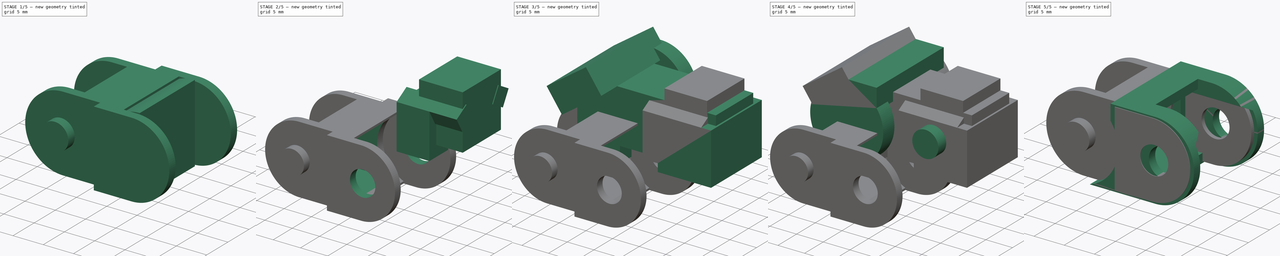
[diagram: build sequence overview — one tinted view per stage of 5, left to right]
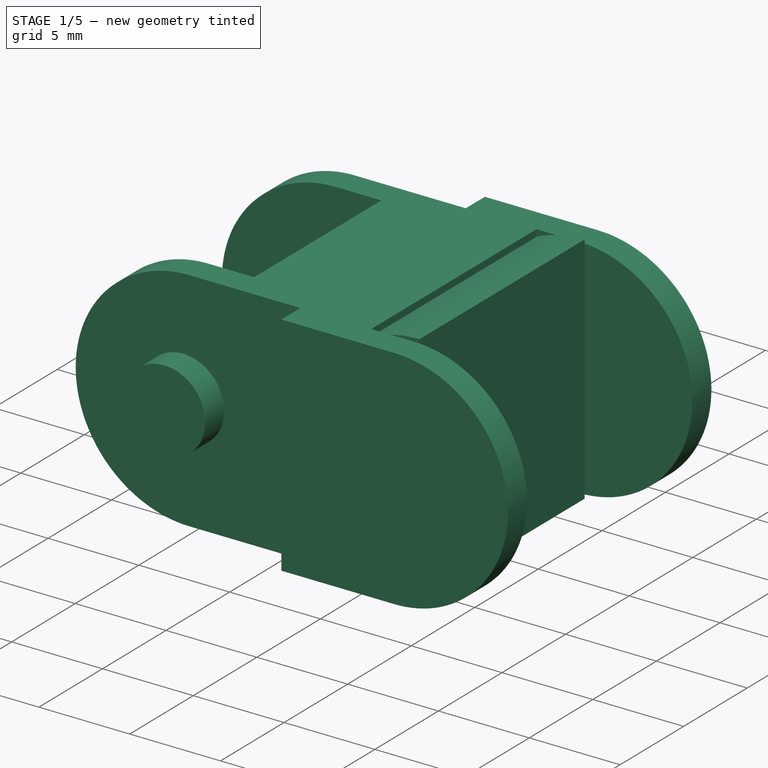
[diagram: stage 1 of 5 — iso view after this stage's code; geometry added in this stage tinted green]
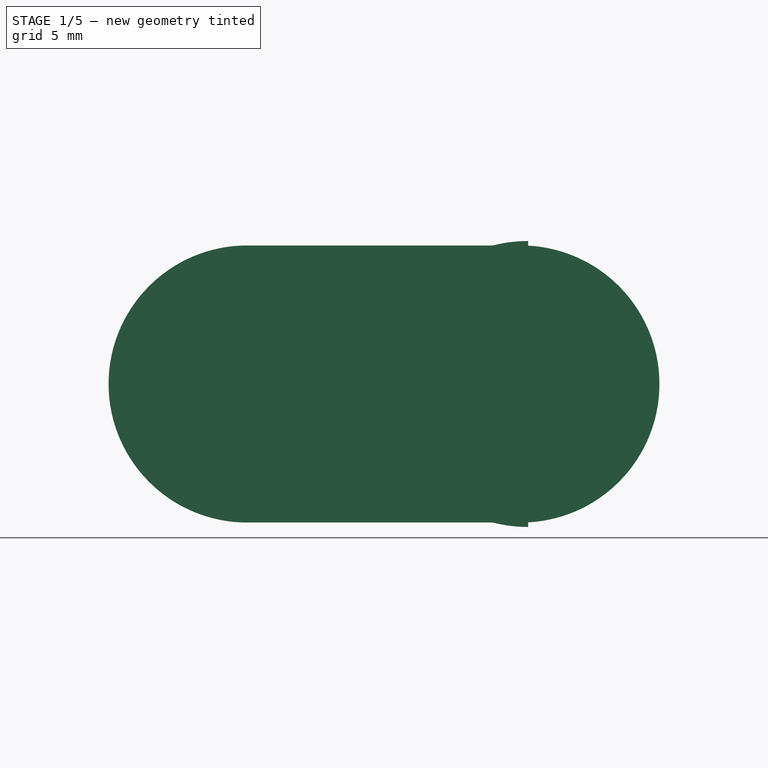
[diagram: stage 1 of 5 — front view after this stage's code; geometry added in this stage tinted green]
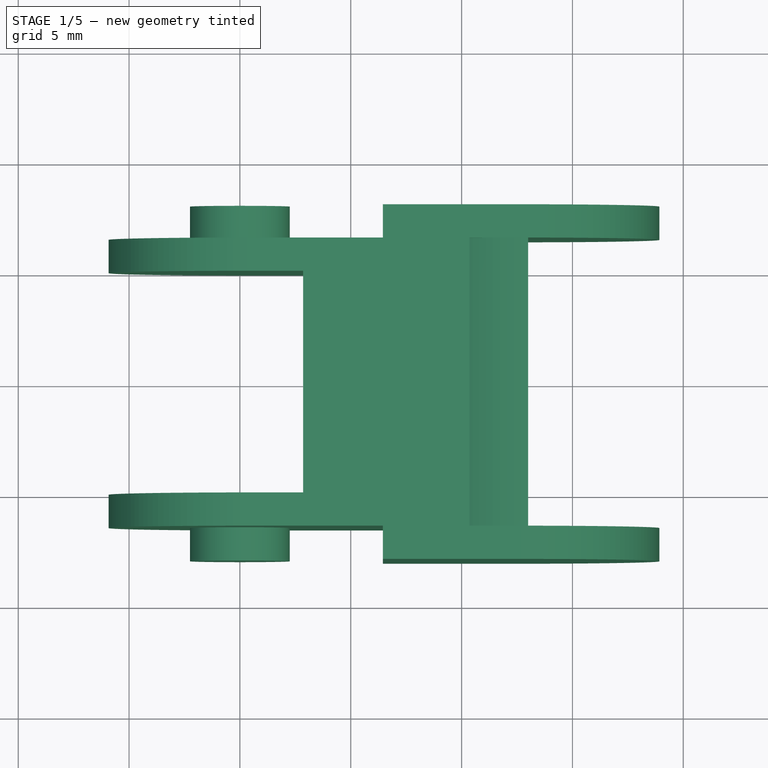
[diagram: stage 1 of 5 — top view after this stage's code; geometry added in this stage tinted green]
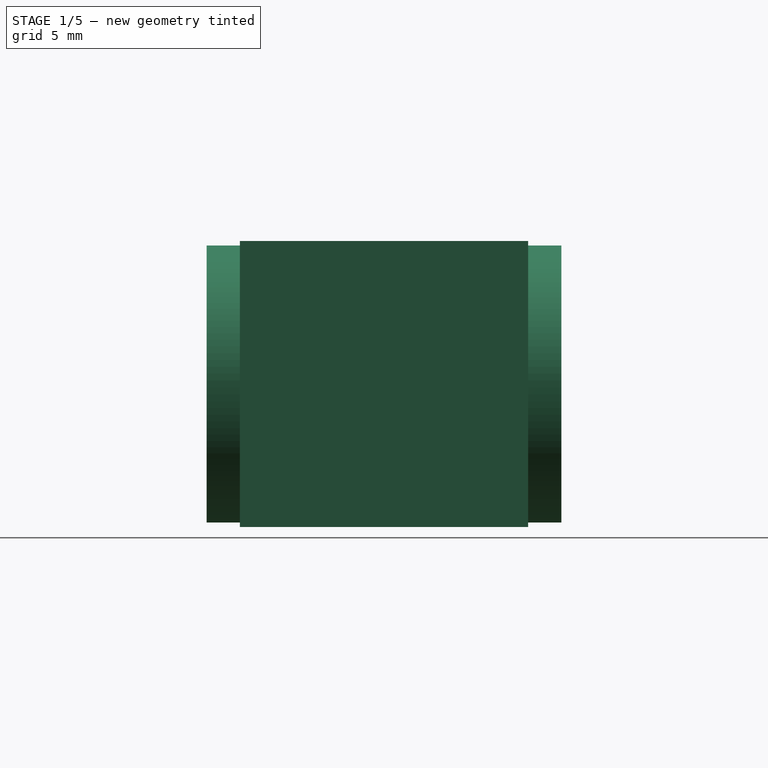
[diagram: stage 1 of 5 — right view after this stage's code; geometry added in this stage tinted green]
FCSTD DOCUMENT  (FreeCAD 0.16R4945 (Git))
Label: cable-chain-link-25_5x16x12_5mm_v2
License: CC-BY 3.0
LicenseURL: http://creativecommons.org/licenses/by/3.0/
objects: Part::Box×11, Sketcher::SketchObject×9, Part::Cylinder×5, PartDesign::Pocket×5, Part::Cut×4, Part::MultiFuse×4, PartDesign::Pad×4, Part::Feature×2, Part::Fillet×1
note: 54 computed .brp shape members not serialized (recipe doc carries the construction recipe); baked Part::Feature solids carry a one-line shape summary decoded from their .brp

FEATURE [Sketcher::SketchObject] Sketch  label="main-body-sketch"
  Placement = pos=(0,0,0) rot=(1,0,0;1.5708rad)
  sketch-geometry (8):
    g0: Circle [constr] CenterX=13 CenterY=0 CenterZ=0 NormalX=0 NormalY=0 NormalZ=1 Radius=2.325
    g1: Circle [constr] CenterX=0 CenterY=0 CenterZ=0 NormalX=0 NormalY=0 NormalZ=1 Radius=2.25
    g2: LineSegment [constr] StartX=0.325 StartY=6.25 StartZ=0 EndX=0.325 EndY=-6.25 EndZ=0
    g3: ArcOfCircle CenterX=0.325 CenterY=0 CenterZ=0 NormalX=0 NormalY=0 NormalZ=1 Radius=6.25 StartAngle=1.5708 EndAngle=4.71239
    g4: LineSegment [constr] StartX=12.675 StartY=6.25 StartZ=0 EndX=12.675 EndY=-6.25 EndZ=0
    g5: LineSegment StartX=0.325 StartY=6.25 StartZ=0 EndX=12.675 EndY=6.25 EndZ=0
    g6: LineSegment StartX=0.325 StartY=-6.25 StartZ=0 EndX=12.675 EndY=-6.25 EndZ=0
    g7: ArcOfCircle CenterX=12.675 CenterY=0 CenterZ=0 NormalX=0 NormalY=0 NormalZ=1 Radius=6.25 StartAngle=4.71239 EndAngle=7.85398
  constraints (24):
    c: PointOnObject(g0,g-1)
    c: Radius(g0) = 2.325
    c: Coincident(g1,g-1)
    c: Radius(g1) = 2.25
    c: DistanceX(g-1,g0) = 13
    c: Vertical(g2)
    c: Coincident(g3,g2)
    c: Coincident(g3,g2)
    c: Radius(g3) = 6.25
    c: PointOnObject(g3,g-1)
    c: DistanceX(g-1,g3) = 0.325
    c: PointOnObject(g3,g2)
    c: Vertical(g4)
    c: Horizontal(g5)
    c: Coincident(g5,g2)
    c: Coincident(g5,g4)
    c: Horizontal(g6)
    c: Coincident(g6,g2)
    c: Coincident(g6,g4)
    c: PointOnObject(g7,g-1)
    c: DistanceX(g7,g0) = 0.325
    c: Coincident(g7,g4)
    c: Coincident(g7,g4)
    c: PointOnObject(g7,g4)
FEATURE [PartDesign::Pad] Pad  label="main-body"
  Length = 16
  Length2 = 100
  Midplane = true
  Placement = pos=(0,0,0) rot=(1,0,0;1.5708rad)
  Sketch = -> Sketch
  Type = 0
FEATURE [Sketcher::SketchObject] Sketch001  label="top-cutout-1-sketch"
  ExternalGeometry = -> [Pad]
  Placement = pos=(0,0,6.25) rot=(0,0,1;3.14159rad)
  Support = -> Pad [Face4]
  sketch-geometry (11):
    g0: LineSegment [constr] StartX=-6.45 StartY=8 StartZ=0 EndX=9.55 EndY=8 EndZ=0
    g1: LineSegment StartX=9.55 StartY=8 StartZ=0 EndX=9.55 EndY=6.5 EndZ=0
    g2: LineSegment StartX=9.55 StartY=6.5 StartZ=0 EndX=-6.45 EndY=6.5 EndZ=0
    g3: LineSegment StartX=-6.45 StartY=6.5 StartZ=0 EndX=-6.45 EndY=8 EndZ=0
    g4: LineSegment StartX=-6.45 StartY=-6.5 StartZ=0 EndX=9.55 EndY=-6.5 EndZ=0
    g5: LineSegment StartX=9.55 StartY=-6.5 StartZ=0 EndX=9.55 EndY=-9 EndZ=0
    g6: LineSegment StartX=9.55 StartY=-9 StartZ=0 EndX=-6.45 EndY=-9 EndZ=0
    g7: LineSegment StartX=-6.45 StartY=-9 StartZ=0 EndX=-6.45 EndY=-6.5 EndZ=0
    g8: LineSegment StartX=-6.45 StartY=9 StartZ=0 EndX=9.55 EndY=9 EndZ=0
    g9: LineSegment StartX=9.55 StartY=9 StartZ=0 EndX=9.55 EndY=8 EndZ=0
    g10: LineSegment StartX=-6.45 StartY=8 StartZ=0 EndX=-6.45 EndY=9 EndZ=0
  constraints (31):
    c: Coincident(g0,g1)
    c: Coincident(g1,g2)
    c: Coincident(g2,g3)
    c: Coincident(g3,g0)
    c: Horizontal(g0)
    c: Horizontal(g2)
    c: Vertical(g1)
    c: Vertical(g3)
    c: PointOnObject(g0,g-3)
    c: DistanceY(g3) = 1.5
    c: DistanceX(g-1,g2) = -6.45
    c: DistanceX(g2) = -16
    c: Coincident(g4,g5)
    c: Coincident(g5,g6)
    c: Coincident(g6,g7)
    c: Coincident(g7,g4)
    c: Horizontal(g4)
    c: Horizontal(g6)
    c: Vertical(g5)
    c: Vertical(g7)
    c: Coincident(g8,g9)
    c: Coincident(g10,g8)
    c: Horizontal(g8)
    c: Vertical(g9)
    c: Vertical(g10)
    c: Coincident(g10,g0)
    c: Coincident(g9,g0)
    c: DistanceY(g9) = -1
    c: Symmetric(g4,g2,g-1)
    c: Symmetric(g8,g6,g-1)
    c: Symmetric(g1,g4,g-1)
FEATURE [PartDesign::Pocket] Pocket  label="top-cutout-1"
  Length = 5
  Placement = pos=(0,0,0) rot=(1,0,0;1.5708rad)
  Sketch = -> Sketch001
  Type = 1
FEATURE [Sketcher::SketchObject] Sketch002  label="top-cutout-2-sketch"
  ExternalGeometry = -> [Pocket]
  Placement = pos=(0,0,6.25) rot=(0,0,1;3.14159rad)
  Support = -> Pocket [Face5]
  sketch-geometry (4):
    g0: LineSegment StartX=7.15 StartY=5 StartZ=0 EndX=-2.85 EndY=5 EndZ=0
    g1: LineSegment StartX=-2.85 StartY=5 StartZ=0 EndX=-2.85 EndY=-5 EndZ=0
    g2: LineSegment StartX=-2.85 StartY=-5 StartZ=0 EndX=7.15 EndY=-5 EndZ=0
    g3: LineSegment StartX=7.15 StartY=-5 StartZ=0 EndX=7.15 EndY=5 EndZ=0
  constraints (12):
    c: Coincident(g0,g1)
    c: Coincident(g1,g2)
    c: Coincident(g2,g3)
    c: Coincident(g3,g0)
    c: Horizontal(g0)
    c: Horizontal(g2)
    c: Vertical(g1)
    c: Vertical(g3)
    c: Symmetric(g0,g2,g-1)
    c: DistanceY(g-3,g0) = -1.5
    c: DistanceX(g0,g-3) = -3.6
    c: DistanceX(g2) = 10
FEATURE [PartDesign::Pocket] Pocket001  label="top-cutout-2"
  Length = 5
  Placement = pos=(0,0,0) rot=(1,0,0;1.5708rad)
  Sketch = -> Sketch002
  Type = 1
FEATURE [Sketcher::SketchObject] Sketch003  label="top-cutout-3-sketch"
  ExternalGeometry = -> [Pocket001]
  Placement = pos=(0,0,6.25) rot=(0,0,1;3.14159rad)
  Support = -> Pocket001 [Face4]
  sketch-geometry (4):
    g0: LineSegment StartX=-23.35 StartY=6.5 StartZ=0 EndX=-10.35 EndY=6.5 EndZ=0
    g1: LineSegment StartX=-10.35 StartY=6.5 StartZ=0 EndX=-10.35 EndY=-6.5 EndZ=0
    g2: LineSegment StartX=-10.35 StartY=-6.5 StartZ=0 EndX=-23.35 EndY=-6.5 EndZ=0
    g3: LineSegment StartX=-23.35 StartY=-6.5 StartZ=0 EndX=-23.35 EndY=6.5 EndZ=0
  constraints (12):
    c: Coincident(g0,g1)
    c: Coincident(g1,g2)
    c: Coincident(g2,g3)
    c: Coincident(g3,g0)
    c: Horizontal(g0)
    c: Horizontal(g2)
    c: Vertical(g1)
    c: Vertical(g3)
    c: Symmetric(g0,g2,g-1)
    c: DistanceX(g0,g-3) = 3.9
    c: DistanceY(g0,g-3) = 1.5
    c: DistanceX(g2) = -13
FEATURE [PartDesign::Pocket] Pocket002  label="top-cutout-3"
  Length = 5
  Placement = pos=(0,0,0) rot=(1,0,0;1.5708rad)
  Sketch = -> Sketch003
  Type = 1
FEATURE [Sketcher::SketchObject] Sketch004  label="male-shaft-1-sketch"
  Placement = pos=(0,-6.5,0) rot=(1,0,0;1.5708rad)
  Support = -> Pocket002 [Face14]
  sketch-geometry (1):
    g0: Circle CenterX=0 CenterY=0 CenterZ=0 NormalX=0 NormalY=0 NormalZ=1 Radius=2.25
  constraints (2):
    c: Coincident(g0,g-1)
    c: Radius(g0) = 2.25
FEATURE [PartDesign::Pad] Pad001  label="male-shaft-1"
  Length = 1.5
  Length2 = 100
  Placement = pos=(0,0,0) rot=(1,0,0;1.5708rad)
  Sketch = -> Sketch004
  Type = 0
FEATURE [Sketcher::SketchObject] Sketch005  label="male-shaft-2-sketch"
  Placement = pos=(0,6.5,0) rot=(-1,0,0;1.5708rad)
  Support = -> Pad001 [Face5]
  sketch-geometry (1):
    g0: Circle CenterX=0 CenterY=0 CenterZ=0 NormalX=0 NormalY=0 NormalZ=1 Radius=2.25
  constraints (2):
    c: Coincident(g0,g-1)
    c: Radius(g0) = 2.25
FEATURE [PartDesign::Pad] Pad002  label="male-shaft-2"
  Length = 1.5
  Length2 = 100
  Placement = pos=(0,0,0) rot=(1,0,0;1.5708rad)
  Sketch = -> Sketch005
  Type = 0
FEATURE [Sketcher::SketchObject] Sketch008  label="inner-room-male-sketch"
  Placement = pos=(0,0,0) rot=(1,0,0;1.5708rad)
  sketch-geometry (2):
    g0: ArcOfCircle CenterX=13 CenterY=0 CenterZ=0 NormalX=0 NormalY=0 NormalZ=1 Radius=6.45 StartAngle=1.5708 EndAngle=4.71239
    g1: LineSegment StartX=13 StartY=6.45 StartZ=0 EndX=13 EndY=-6.45 EndZ=0
  constraints (8):
    c: Radius(g0) = 6.45
    c: PointOnObject(g0,g-1)
    c: Symmetric(g0,g0,g-1)
    c: DistanceX(g-1,g0) = 13
    c: Vertical(g1)
    c: Coincident(g1,g0)
    c: Coincident(g1,g0)
    c: PointOnObject(g0,g1)
FEATURE [PartDesign::Pad] Pad003  label="inner-room-male"
  Length = 13
  Length2 = 100
  Midplane = true
  Placement = pos=(0,0,0) rot=(1,0,0;1.5708rad)
  Sketch = -> Sketch008
  Type = 0
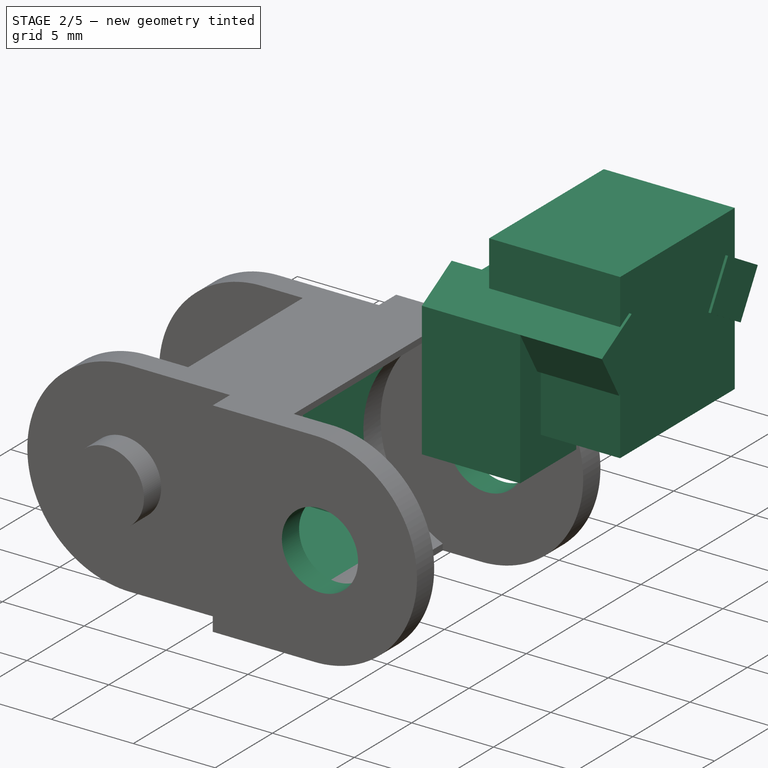
[diagram: stage 2 of 5 — iso view after this stage's code; geometry added in this stage tinted green]
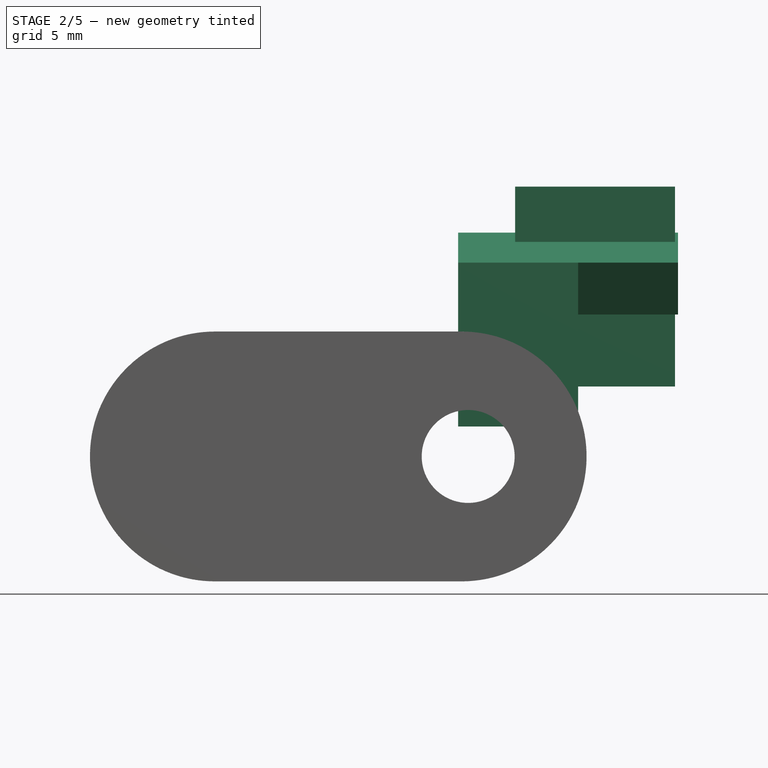
[diagram: stage 2 of 5 — front view after this stage's code; geometry added in this stage tinted green]
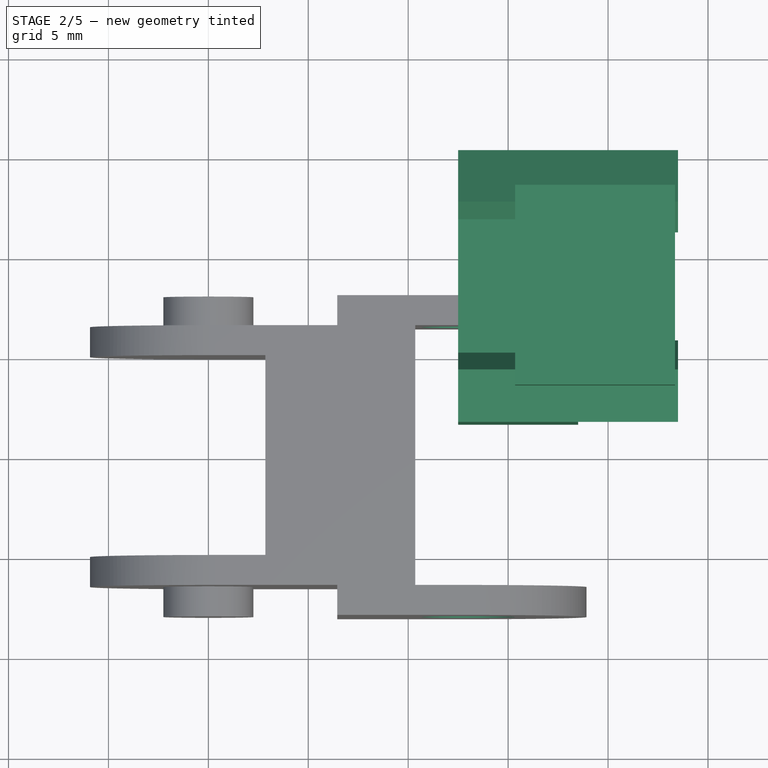
[diagram: stage 2 of 5 — top view after this stage's code; geometry added in this stage tinted green]
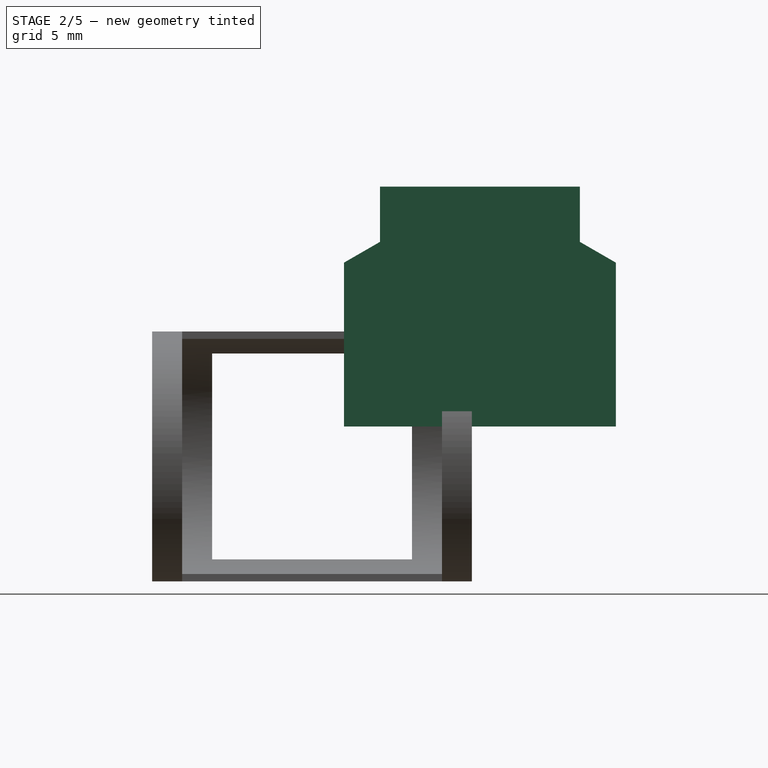
[diagram: stage 2 of 5 — right view after this stage's code; geometry added in this stage tinted green]
FEATURE [Part::Box] Box007
  Height = 8.2
  Length = 6
  Placement = pos=(12.5,1.6,1.5) rot=(0,0,1;0rad)
  Width = 13.6
FEATURE [Part::Box] Box008
  Height = 10
  Length = 8
  Placement = pos=(15.35,3.4,3.5) rot=(0,0,1;0rad)
  Width = 10
FEATURE [Part::Box] Box009
  Height = 3
  Length = 11
  Placement = pos=(12.5,3.1,7.1) rot=(1,0,0;0.523599rad)
  Width = 3
FEATURE [Part::Box] Box010
  Height = 3
  Length = 11
  Placement = pos=(12.5,13.7,7.1) rot=(1,0,0;1.0472rad)
  Width = 3
FEATURE [Sketcher::SketchObject] Sketch006  label="female-shaft-sketch"
  Placement = pos=(0,8,0) rot=(-1,0,0;1.5708rad)
  Support = -> Pad002 [Face6]
  sketch-geometry (1):
    g0: Circle CenterX=13 CenterY=0 CenterZ=0 NormalX=0 NormalY=0 NormalZ=1 Radius=2.325
  constraints (3):
    c: PointOnObject(g0,g-1)
    c: DistanceX(g-1,g0) = 13
    c: Radius(g0) = 2.325
FEATURE [PartDesign::Pocket] Pocket003  label="female-shaft"
  Length = 5
  Placement = pos=(0,0,0) rot=(1,0,0;1.5708rad)
  Sketch = -> Sketch006
  Type = 1
FEATURE [Sketcher::SketchObject] Sketch007  label="inner-cutout-1-sketch"
  ExternalGeometry = -> [Pocket003]
  Placement = pos=(10.35,0,0) rot=(0.707107,0,0.707107;3.14159rad)
  Support = -> Pocket003 [Face9]
  sketch-geometry (4):
    g0: LineSegment StartX=-5.15 StartY=5 StartZ=0 EndX=5.15 EndY=5 EndZ=0
    g1: LineSegment StartX=5.15 StartY=5 StartZ=0 EndX=5.15 EndY=-5 EndZ=0
    g2: LineSegment StartX=5.15 StartY=-5 StartZ=0 EndX=-5.15 EndY=-5 EndZ=0
    g3: LineSegment StartX=-5.15 StartY=-5 StartZ=0 EndX=-5.15 EndY=5 EndZ=0
  constraints (11):
    c: Coincident(g0,g1)
    c: Coincident(g1,g2)
    c: Coincident(g2,g3)
    c: Coincident(g3,g0)
    c: Horizontal(g0)
    c: Horizontal(g2)
    c: Vertical(g1)
    c: Vertical(g3)
    c: Symmetric(g0,g1,g-1)
    c: DistanceX(g0,g-3) = 1.1
    c: DistanceY(g0,g-3) = 1.5
FEATURE [PartDesign::Pocket] Pocket004  label="inner-cutout-1"
  Length = 5
  Placement = pos=(0,0,0) rot=(1,0,0;1.5708rad)
  Sketch = -> Sketch007
  Type = 1
FEATURE [Part::Cut] Cut003  label="cable-chain-link"
  Base = -> Pocket004
  Tool = -> Pad003
FEATURE [Part::Feature] Cut003001  label="cable-chain-link-1"
  shape: bbox 24.85 x 16 x 12.5 mm, 29 faces (baked)
FEATURE [Part::Feature] Cut003002  label="cable-chain-link-2-ex"
  Placement = pos=(13,0,0) rot=(0,0,1;0rad)
  shape: bbox 24.85 x 16 x 12.5 mm, 29 faces (baked)
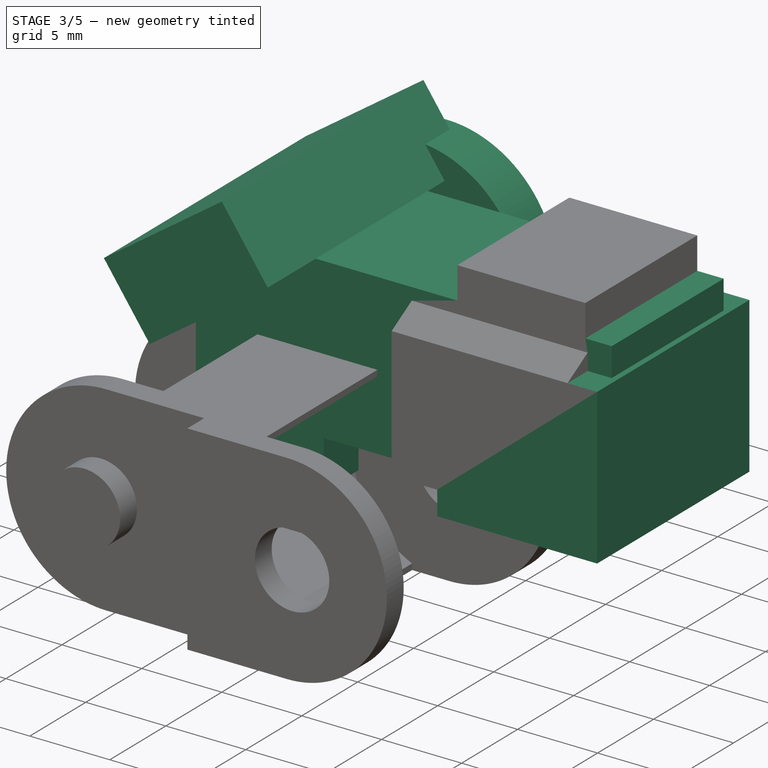
[diagram: stage 3 of 5 — iso view after this stage's code; geometry added in this stage tinted green]
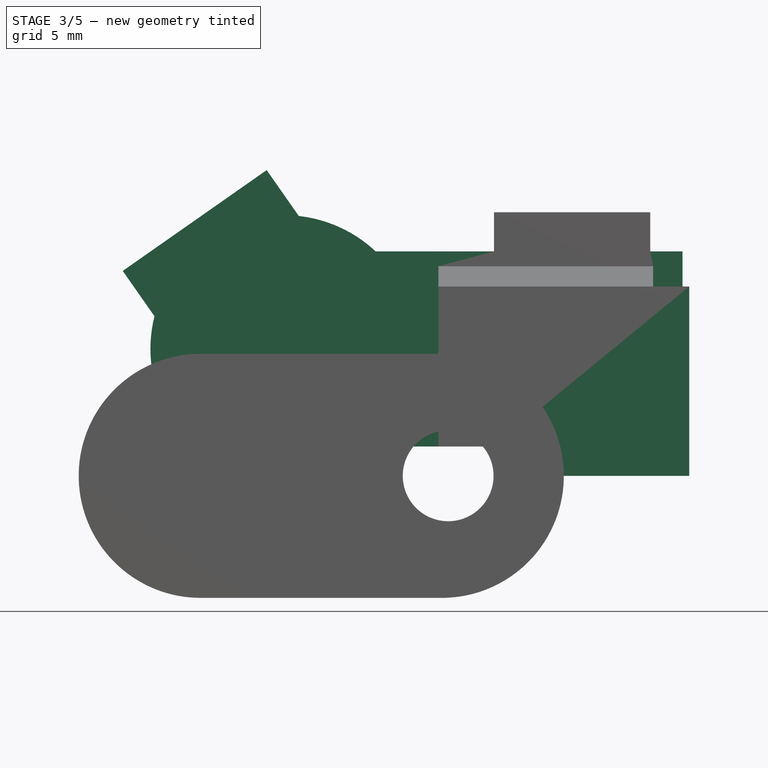
[diagram: stage 3 of 5 — front view after this stage's code; geometry added in this stage tinted green]
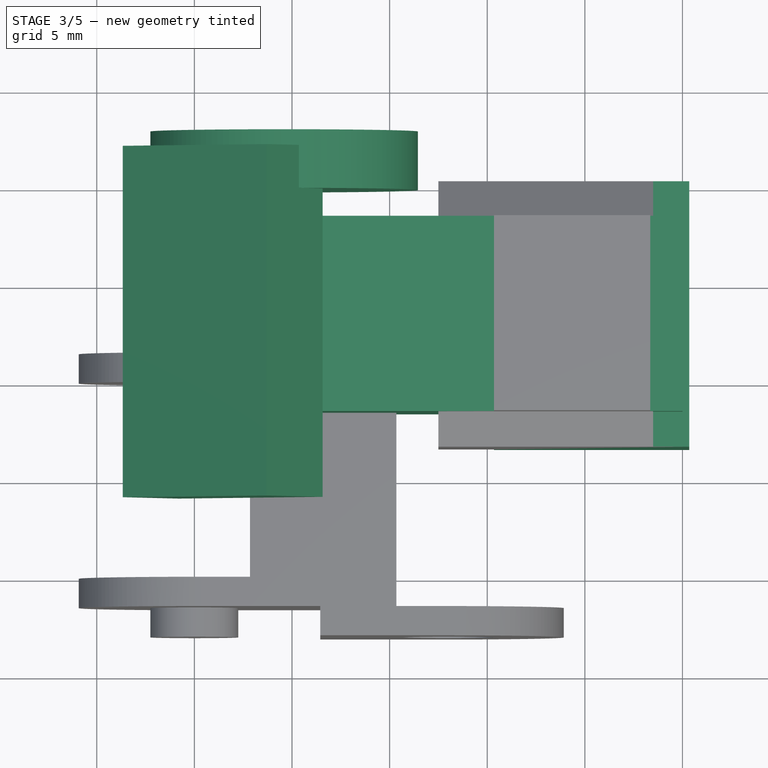
[diagram: stage 3 of 5 — top view after this stage's code; geometry added in this stage tinted green]
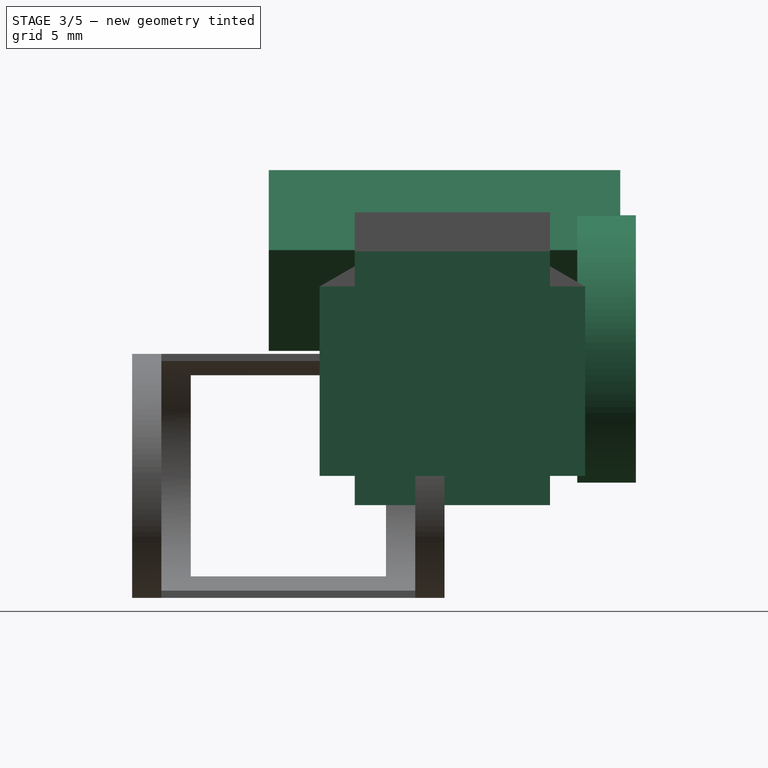
[diagram: stage 3 of 5 — right view after this stage's code; geometry added in this stage tinted green]
FEATURE [Part::Box] Box002
  Height = 5
  Length = 9
  Placement = pos=(-0.8,-1,6.4) rot=(0,-1,0;0.610866rad)
  Width = 18
FEATURE [Part::Cylinder] Cylinder004
  Angle = 360
  Height = 3
  Placement = pos=(4.6,17.8,6.5) rot=(1,0,0;1.5708rad)
  Radius = 6.85
FEATURE [Part::Box] Box004
  Height = 10
  Length = 26
  Placement = pos=(-1,3.4,1.5) rot=(0,0,1;0rad)
  Width = 10
FEATURE [Part::Box] Box005
  Height = 13
  Length = 8
  Placement = pos=(-1,3.4,-1.5) rot=(0,0,1;0rad)
  Width = 10
FEATURE [Part::Box] Box006
  Height = 9.7
  Length = 10
  Placement = pos=(15.35,1.6,0) rot=(0,0,1;0rad)
  Width = 13.6
FEATURE [Part::MultiFuse] Fusion003
  Shapes = -> [Box009,Box010,Box004,Box005,Box006,Box007,Box008]
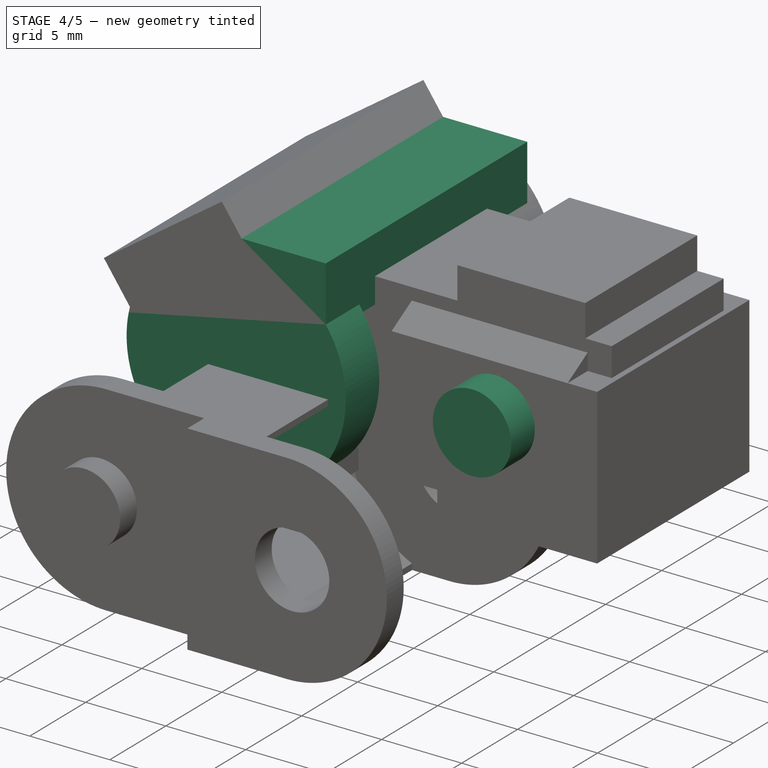
[diagram: stage 4 of 5 — iso view after this stage's code; geometry added in this stage tinted green]
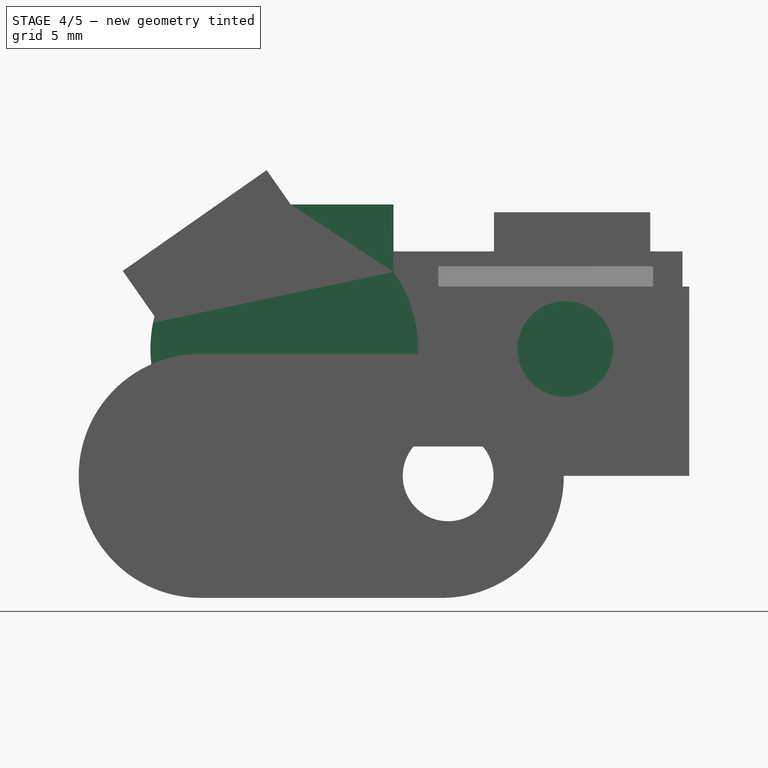
[diagram: stage 4 of 5 — front view after this stage's code; geometry added in this stage tinted green]
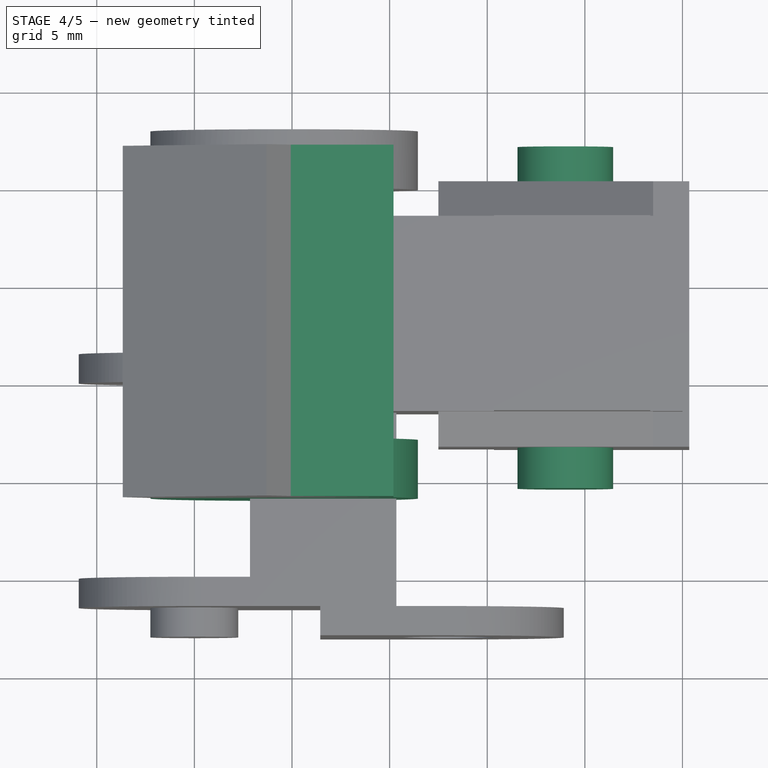
[diagram: stage 4 of 5 — top view after this stage's code; geometry added in this stage tinted green]
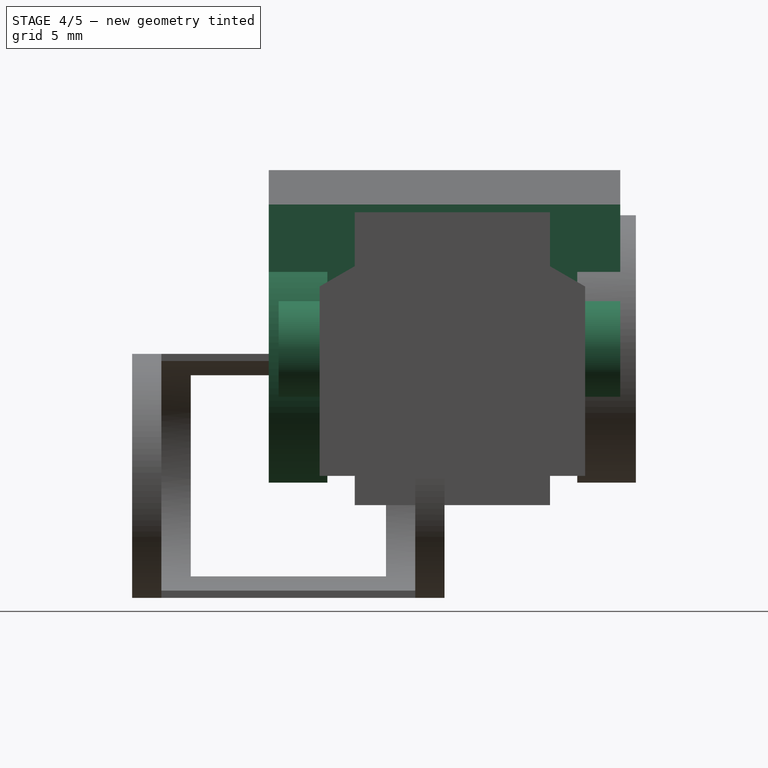
[diagram: stage 4 of 5 — right view after this stage's code; geometry added in this stage tinted green]
FEATURE [Part::Box] Box001
  Height = 4
  Length = 7
  Placement = pos=(3.2,-1,9.9) rot=(0,0,1;0rad)
  Width = 18
FEATURE [Part::Cylinder] Cylinder
  Angle = 360
  Height = 17.5
  Placement = pos=(19,17,6.5) rot=(1,0,0;1.5708rad)
  Radius = 2.45
FEATURE [Part::Cylinder] Cylinder002
  Angle = 360
  Height = 3
  Placement = pos=(4.6,2,6.5) rot=(1,0,0;1.5708rad)
  Radius = 6.85
FEATURE [Part::Cylinder] Cylinder003
  Angle = 360
  Height = 17.5
  Placement = pos=(5,17,5.5) rot=(1,0,0;1.5708rad)
  Radius = 5.5
FEATURE [Part::Box] Box003
  Height = 4
  Length = 5
  Placement = pos=(0,-0.5,0) rot=(0,0,1;0rad)
  Width = 17.5
FEATURE [Part::Cut] Cut001
  Base = -> Box003
  Tool = -> Cylinder003
FEATURE [Part::MultiFuse] Fusion
  Shapes = -> [Box002,Box001,Cylinder002,Cylinder,Cylinder004]
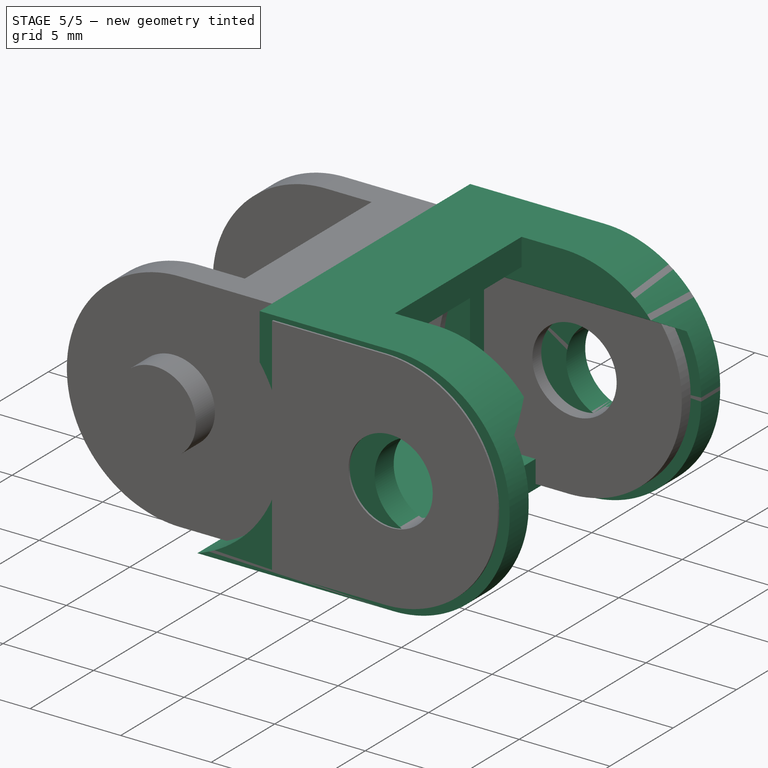
[diagram: stage 5 of 5 — iso view after this stage's code; geometry added in this stage tinted green]
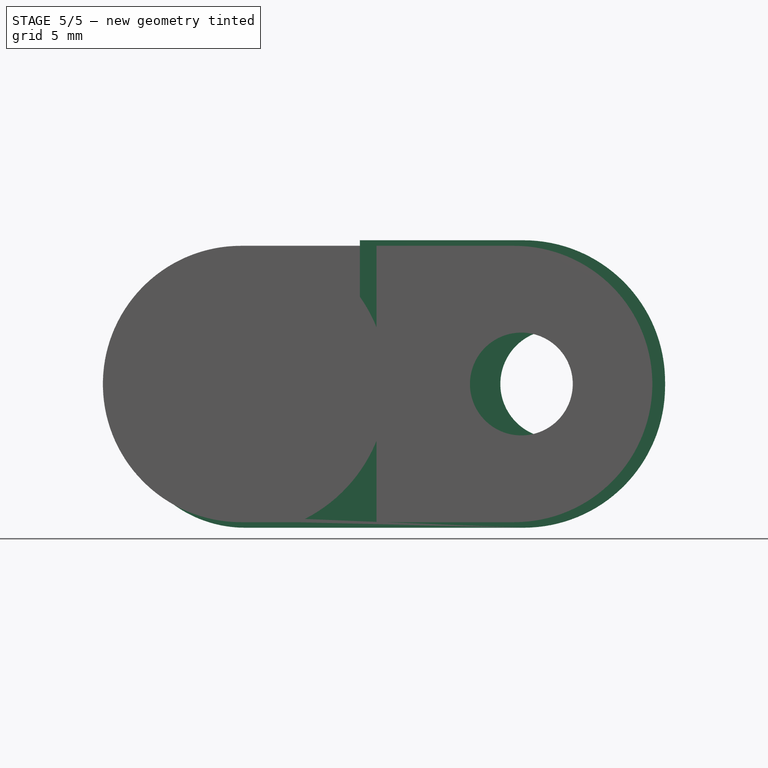
[diagram: stage 5 of 5 — front view after this stage's code; geometry added in this stage tinted green]
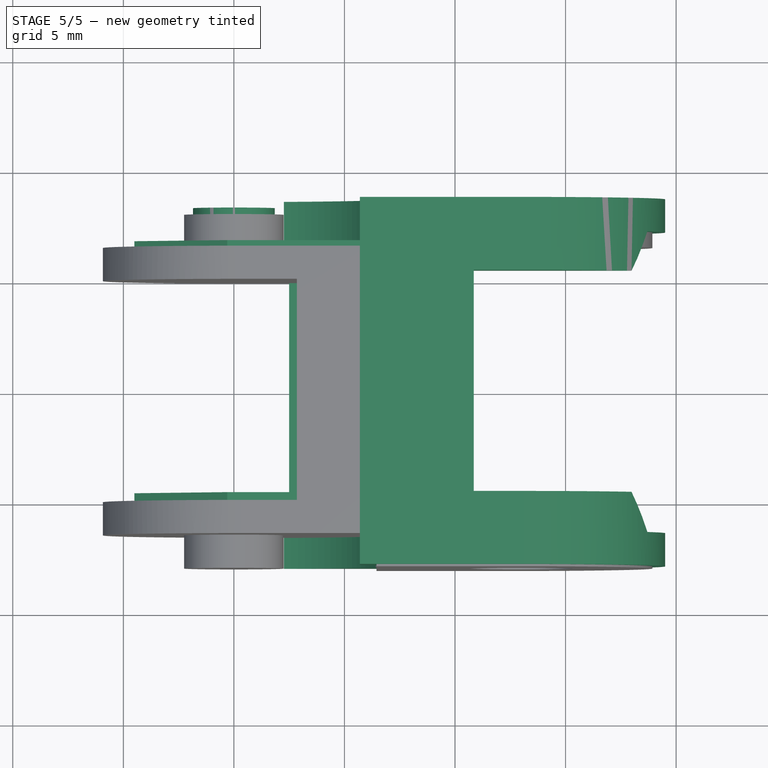
[diagram: stage 5 of 5 — top view after this stage's code; geometry added in this stage tinted green]
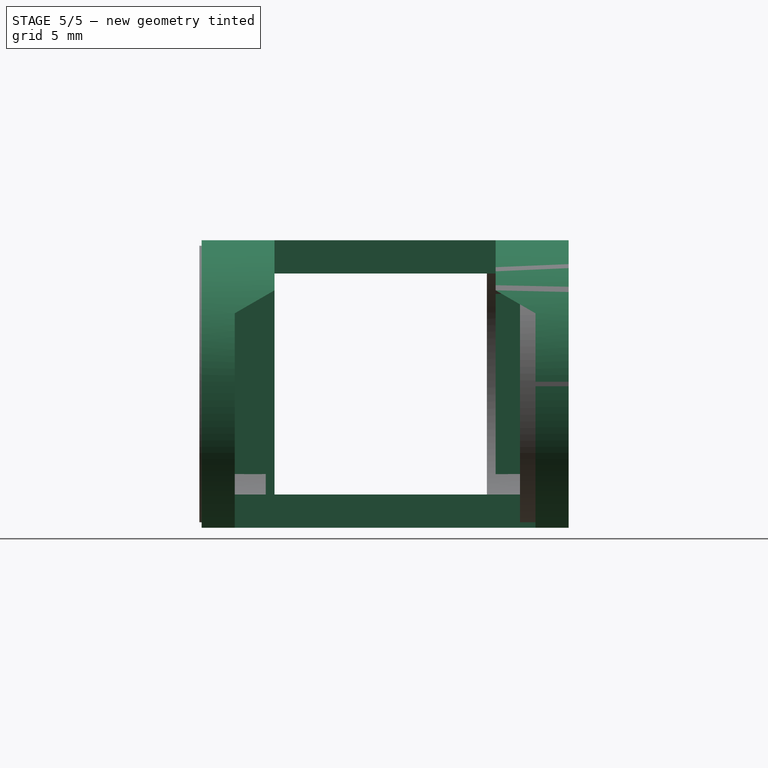
[diagram: stage 5 of 5 — right view after this stage's code; geometry added in this stage tinted green]
FEATURE [Part::Box] Box
  Height = 13
  Length = 24
  Placement = pos=(0,0.1,0) rot=(0,0,1;0rad)
  Width = 16.6
FEATURE [Part::Fillet] Fillet
  Base = -> Box
  Edges = 2 edges r=6.4: [Edge6,Edge8]
FEATURE [Part::Cylinder] Cylinder001
  Angle = 360
  Height = 15.8
  Placement = pos=(4.5,16.3,6.5) rot=(1,0,0;1.5708rad)
  Radius = 1.85
FEATURE [Part::MultiFuse] Fusion001
  Shapes = -> [Fusion,Cut001]
FEATURE [Part::Cut] Cut
  Base = -> Fillet
  Tool = -> Fusion001
FEATURE [Part::MultiFuse] Fusion002
  Shapes = -> [Cut,Cylinder001]
FEATURE [Part::Cut] Cut002  label="pieza"
  Base = -> Fusion002
  Placement = pos=(-4.5,-8,-6.5) rot=(0,0,1;0rad)
  Tool = -> Fusion003
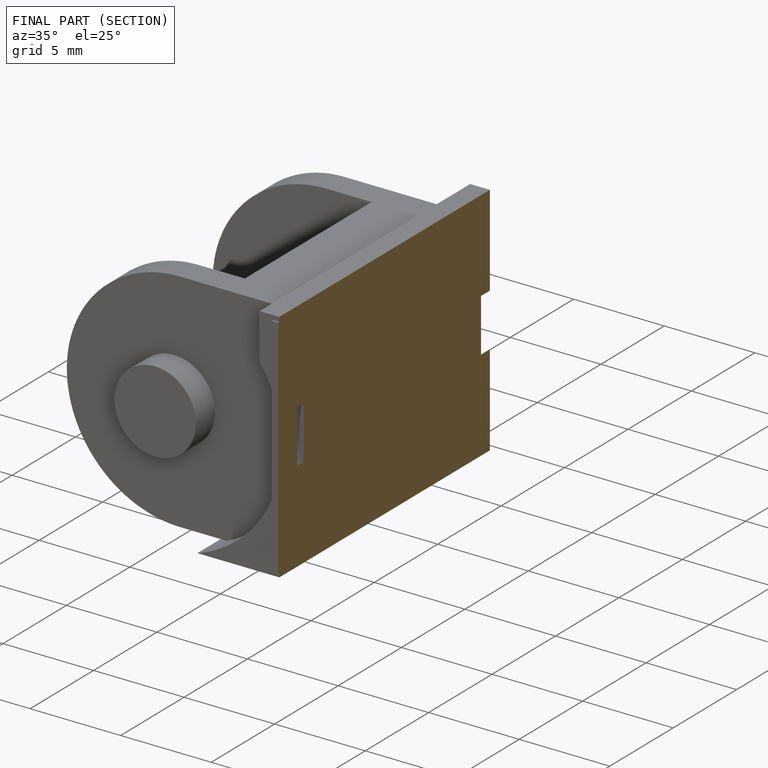
[diagram: finished part — half-section view (interior)]
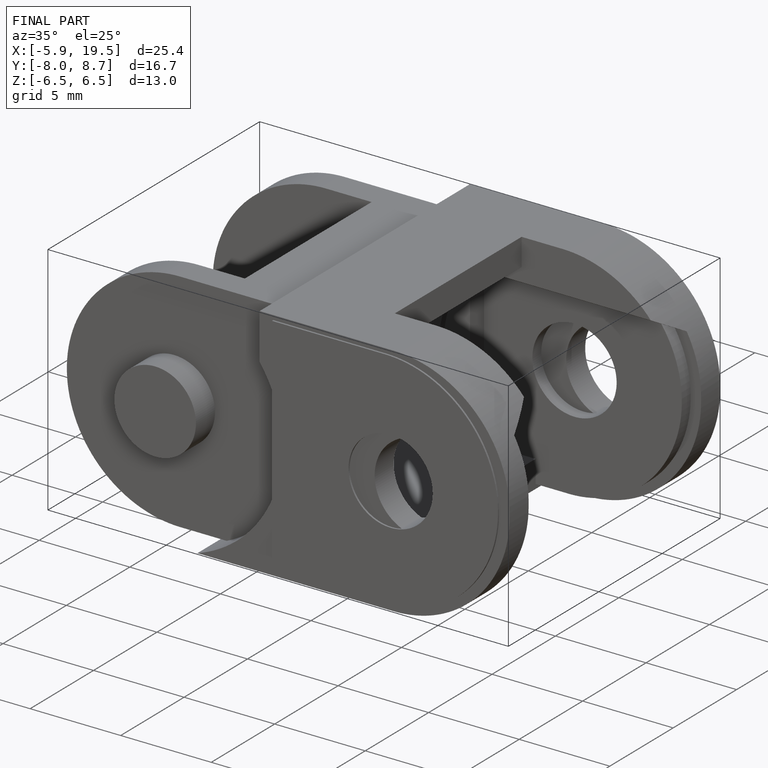
[diagram: finished part — iso view with bounding-box wireframe]
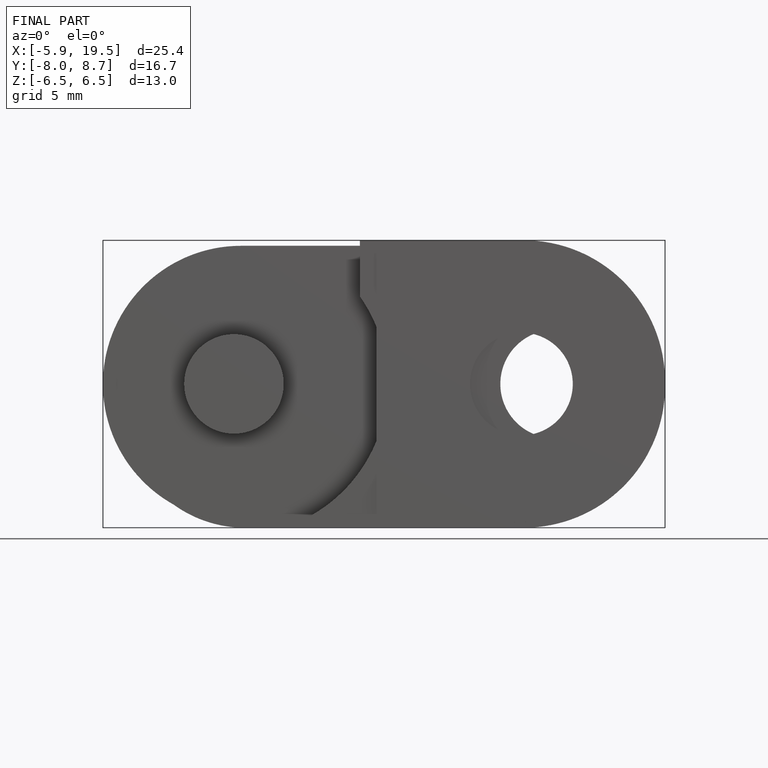
[diagram: finished part — front view with bounding-box wireframe]
